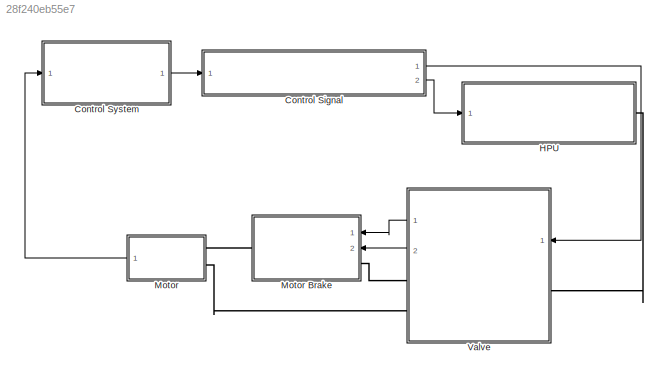
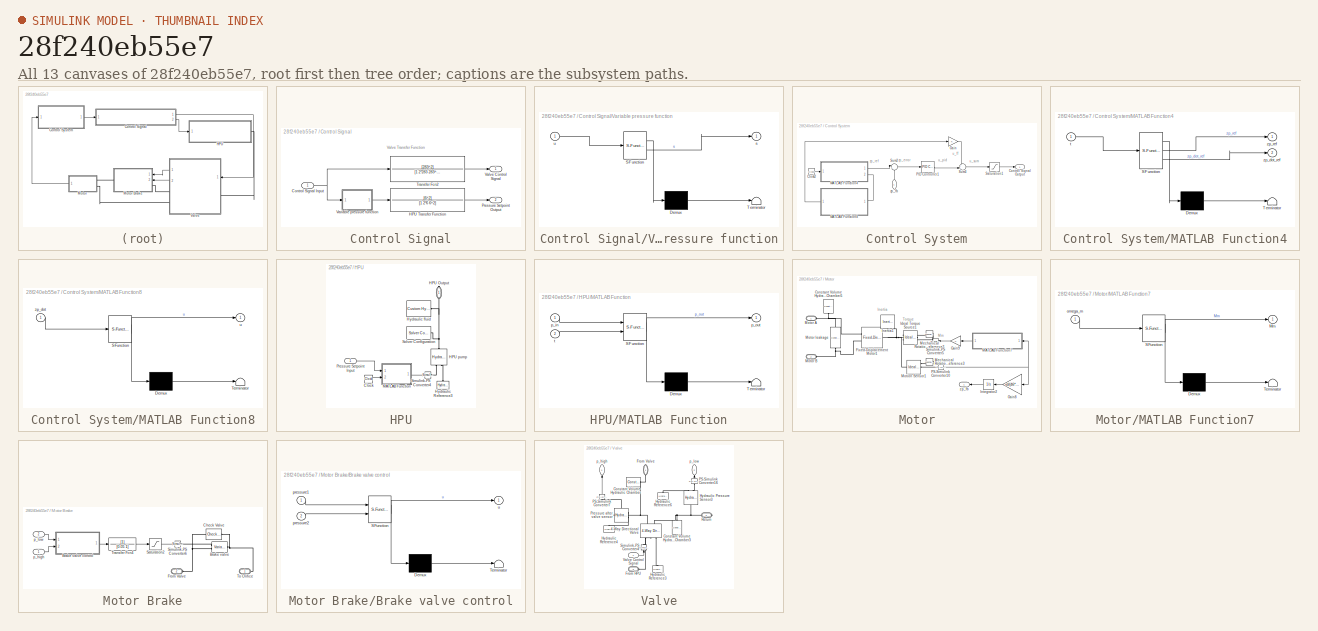
[diagram: thumbnail index - all 13 canvases of the model, root first then tree order]
MODEL slx_28f240eb55e7
KIND model
CONFIG AbsTol = auto
CONFIG EnableMultiTasking = off
CONFIG FixedStep = auto
CONFIG MaxStep = auto
CONFIG MinStep = auto
CONFIG RelTol = 1e-3
CONFIG SampleTimeConstraint = Unconstrained
CONFIG SolverName = VariableStepAuto
CONFIG StartTime = 0.0
CONFIG StopTime = 20
WORKSPACE source: MATLAB code (in-file)
WORKSPACE rho = 875
WORKSPACE P_r = 70e5  (= 7000000)
WORKSPACE Cd = 0.7
WORKSPACE Q_r = 200/6e4  (= 0.00333333333333)
WORKSPACE AdMax = Q_r/Cd/sqrt(2/rho*P_r/2)
WORKSPACE g = 9.81
WORKSPACE zw = 0.8
WORKSPACE tw = 10
WORKSPACE ig = 46
WORKSPACE m = 9000
WORKSPACE mueq = 0.15
WORKSPACE dd = 0.45
WORKSPACE nyv = 0.92
WORKSPACE rd = dd/2  (= 0.225)
WORKSPACE omega0 = 5
WORKSPACE omegap = 1500
WORKSPACE nsh = 3
WORKSPACE gearrationsh = nsh.*2
BLOCK [SubSystem] Control Signal
  Ports = [1, 2]
BLOCK [Inport] Control Signal/Control Signal Input
BLOCK [TransferFcn] Control Signal/HPU Transfer Function
  Denominator = [1 2*6 6^2]
  Numerator = [6^2]
BLOCK [Outport] Control Signal/Pressure Setpoint Output
  Port = 2
BLOCK [TransferFcn] Control Signal/Transfer Fcn2
  Denominator = [1 2*283 283^2]
  Numerator = [283^2]
BLOCK [Outport] Control Signal/Valve Control Signal
BLOCK [SubSystem] Control Signal/Variable pressure function
  ErrorFcn = Stateflow.Translate.translate
  PermitHierarchicalResolution = ExplicitOnly
  Ports = [1, 1]
  SFBlockType = MATLAB Function
  TreatAsAtomicUnit = on
BLOCK [Demux] Control Signal/Variable pressure function/ Demux 
  Outputs = 1
  Ports = [1, 1]
BLOCK [S-Function] Control Signal/Variable pressure function/ SFunction 
  EnableBusSupport = on
  FunctionName = sf_sfun
  PortCounts = [1 2]
  Ports = [1, 2]
  SFcnIsStateOwnerBlock = off
  SFunctionDeploymentMode = off
  Tag = Stateflow S-Function 7
BLOCK [Terminator] Control Signal/Variable pressure function/ Terminator 
BLOCK [Outport] Control Signal/Variable pressure function/s
BLOCK [Inport] Control Signal/Variable pressure function/u
BLOCK [SubSystem] Control System
  Ports = [1, 1]
BLOCK [Clock] Control System/Clock2
BLOCK [Outport] Control System/Control Signal Output
BLOCK [Gain] Control System/Gain
BLOCK [SubSystem] Control System/MATLAB Function4
  ErrorFcn = Stateflow.Translate.translate
  PermitHierarchicalResolution = ExplicitOnly
  Ports = [1, 2]
  SFBlockType = MATLAB Function
  TreatAsAtomicUnit = on
BLOCK [Demux] Control System/MATLAB Function4/ Demux 
  Outputs = 1
  Ports = [1, 1]
BLOCK [S-Function] Control System/MATLAB Function4/ SFunction 
  EnableBusSupport = on
  FunctionName = sf_sfun
  PortCounts = [1 3]
  Ports = [1, 3]
  SFcnIsStateOwnerBlock = off
  SFunctionDeploymentMode = off
  Tag = Stateflow S-Function 6
BLOCK [Terminator] Control System/MATLAB Function4/ Terminator 
BLOCK [Inport] Control System/MATLAB Function4/t
BLOCK [Outport] Control System/MATLAB Function4/zp_dot_ref
  Port = 2
BLOCK [Outport] Control System/MATLAB Function4/zp_ref
BLOCK [SubSystem] Control System/MATLAB Function8
  ErrorFcn = Stateflow.Translate.translate
  NameLocation = top
  PermitHierarchicalResolution = ExplicitOnly
  Ports = [1, 1]
  SFBlockType = MATLAB Function
  TreatAsAtomicUnit = on
BLOCK [Demux] Control System/MATLAB Function8/ Demux 
  Outputs = 1
  Ports = [1, 1]
BLOCK [S-Function] Control System/MATLAB Function8/ SFunction 
  EnableBusSupport = on
  FunctionName = sf_sfun
  PortCounts = [1 2]
  Ports = [1, 2]
  SFcnIsStateOwnerBlock = off
  SFunctionDeploymentMode = off
  Tag = Stateflow S-Function 11
BLOCK [Terminator] Control System/MATLAB Function8/ Terminator 
BLOCK [Outport] Control System/MATLAB Function8/u
BLOCK [Inport] Control System/MATLAB Function8/zp_dot
BLOCK [Reference] Control System/PID Controller1  REF=slpidlib/PID Controller
  Ports = [1, 1]
  SourceBlock = slpidlib/PID Controller
  SourceType = PID 1dof
BLOCK [Saturate] Control System/Saturation1
  LowerLimit = -1
  UpperLimit = 1
BLOCK [Sum] Control System/Sum2
  Inputs = |+-
  Ports = [2, 1]
BLOCK [Sum] Control System/Sum3
  Inputs = ++|
  Ports = [2, 1]
BLOCK [Inport] Control System/zp_fb
  NameLocation = right
BLOCK [SubSystem] HPU
  Ports = [1, 0, 0, 0, 0, 0, 1]
BLOCK [Clock] HPU/Clock
BLOCK [PMIOPort] HPU/HPU Output
  NameLocation = right
  Side = Right
BLOCK [Reference] HPU/HPU pump  REF=fl_lib/Hydraulic/Hydraulic Sources/Hydraulic Pressure
Source
  NameLocation = right
  Ports = [0, 0, 0, 0, 0, 1, 2]
  SourceBlock = fl_lib/Hydraulic/Hydraulic Sources/Hydraulic Pressure\nSource
  SourceType = Hydraulic Pressure\nSource
BLOCK [Reference] HPU/Hydraulic Reference3  REF=fl_lib/Hydraulic/Hydraulic Elements/Hydraulic Reference
  NameLocation = right
  Ports = [0, 0, 0, 0, 0, 1]
  SourceBlock = fl_lib/Hydraulic/Hydraulic Elements/Hydraulic Reference
  SourceType = Hydraulic Reference
BLOCK [Reference] HPU/Hydraulic fluid  REF=fl_lib/Hydraulic/Hydraulic Utilities/Custom Hydraulic
Fluid
  Ports = [0, 0, 0, 0, 0, 0, 1]
  SourceBlock = fl_lib/Hydraulic/Hydraulic Utilities/Custom Hydraulic\nFluid
  SourceType = Custom Hydraulic\nFluid
BLOCK [SubSystem] HPU/MATLAB Function
  ErrorFcn = Stateflow.Translate.translate
  PermitHierarchicalResolution = ExplicitOnly
  Ports = [2, 1]
  SFBlockType = MATLAB Function
  TreatAsAtomicUnit = on
BLOCK [Demux] HPU/MATLAB Function/ Demux 
  Outputs = 1
  Ports = [1, 1]
BLOCK [S-Function] HPU/MATLAB Function/ SFunction 
  EnableBusSupport = on
  FunctionName = sf_sfun
  PortCounts = [2 2]
  Ports = [2, 2]
  SFcnIsStateOwnerBlock = off
  SFunctionDeploymentMode = off
  Tag = Stateflow S-Function 2
BLOCK [Terminator] HPU/MATLAB Function/ Terminator 
BLOCK [Inport] HPU/MATLAB Function/p_in
BLOCK [Outport] HPU/MATLAB Function/p_out
BLOCK [Inport] HPU/MATLAB Function/t
  Port = 2
BLOCK [Inport] HPU/Pressure Setpoint Input
BLOCK [Reference] HPU/Simulink-PS Converter4  REF=nesl_utility/Simulink-PS
Converter
  Ports = [1, 0, 0, 0, 0, 0, 1]
  SourceBlock = nesl_utility/Simulink-PS\nConverter
  SourceType = Simulink-PS\nConverter
BLOCK [Reference] HPU/Solver Configuration  REF=nesl_utility/Solver
Configuration
  Ports = [0, 0, 0, 0, 0, 0, 1]
  SourceBlock = nesl_utility/Solver\nConfiguration
  SourceType = Solver\nConfiguration
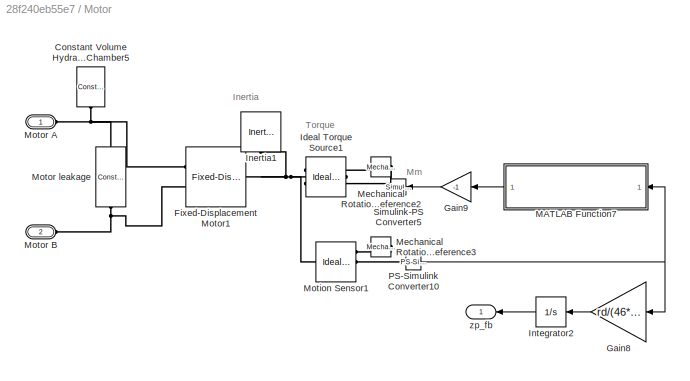
BLOCK [SubSystem] Motor
  NameLocation = top
  Ports = [0, 1, 0, 0, 0, 2]
BLOCK [SubSystem] Motor Brake
  NameLocation = top
  Ports = [2, 0, 0, 0, 0, 1, 1]
BLOCK [Reference] Motor Brake/Brake valve  REF=sh_lib/Orifices/Variable Orifice
  Ports = [0, 0, 0, 0, 0, 2, 1]
  SourceBlock = sh_lib/Orifices/Variable Orifice
  SourceType = Variable Orifice
BLOCK [SubSystem] Motor Brake/Brake valve control
  ErrorFcn = Stateflow.Translate.translate
  PermitHierarchicalResolution = ExplicitOnly
  Ports = [2, 1]
  SFBlockType = MATLAB Function
  TreatAsAtomicUnit = on
BLOCK [Demux] Motor Brake/Brake valve control/ Demux 
  Outputs = 1
  Ports = [1, 1]
BLOCK [S-Function] Motor Brake/Brake valve control/ SFunction 
  EnableBusSupport = on
  FunctionName = sf_sfun
  PortCounts = [2 2]
  Ports = [2, 2]
  SFcnIsStateOwnerBlock = off
  SFunctionDeploymentMode = off
  Tag = Stateflow S-Function 9
BLOCK [Terminator] Motor Brake/Brake valve control/ Terminator 
BLOCK [Inport] Motor Brake/Brake valve control/pressure1
BLOCK [Inport] Motor Brake/Brake valve control/pressure2
  Port = 2
BLOCK [Outport] Motor Brake/Brake valve control/u
BLOCK [Reference] Motor Brake/Check Valve  REF=sh_lib/Valves/Directional Valves/Check Valve
  Ports = [0, 0, 0, 0, 0, 1, 1]
  SourceBlock = sh_lib/Valves/Directional Valves/Check Valve
  SourceType = Check Valve
BLOCK [PMIOPort] Motor Brake/From Valve
  Port = 2
  Side = Left
BLOCK [Saturate] Motor Brake/Saturation2
  LowerLimit = 0
  UpperLimit = 1
BLOCK [Reference] Motor Brake/Simulink-PS Converter6  REF=nesl_utility/Simulink-PS
Converter
  Ports = [1, 0, 0, 0, 0, 0, 1]
  SourceBlock = nesl_utility/Simulink-PS\nConverter
  SourceType = Simulink-PS\nConverter
BLOCK [PMIOPort] Motor Brake/To Orifice
  Side = Right
BLOCK [TransferFcn] Motor Brake/Transfer Fcn4
  Denominator = [0.05 1]
BLOCK [Inport] Motor Brake/p_high
BLOCK [Inport] Motor Brake/p_low
  Port = 2
BLOCK [Reference] Motor/Constant Volume Hydraulic Chamber5  REF=fl_lib/Hydraulic/Hydraulic Elements/Constant Volume
Hydraulic Chamber
  NameLocation = left
  Ports = [0, 0, 0, 0, 0, 1]
  SourceBlock = fl_lib/Hydraulic/Hydraulic Elements/Constant Volume\nHydraulic Chamber
  SourceType = Constant Volume\nHydraulic Chamber
BLOCK [Reference] Motor/Fixed-Displacement Motor1  REF=sh_lib/Pumps and Motors/Fixed-Displacement
Motor
  Ports = [0, 0, 0, 0, 0, 2, 1]
  SourceBlock = sh_lib/Pumps and Motors/Fixed-Displacement\nMotor
  SourceType = Fixed-Displacement\nMotor
BLOCK [Gain] Motor/Gain8
  Gain = rd/(46*6)
  NameLocation = top
BLOCK [Gain] Motor/Gain9
  Gain = -1
  NameLocation = top
BLOCK [Reference] Motor/Ideal Torque Source1  REF=fl_lib/Mechanical/Mechanical Sources/Ideal Torque Source
  NameLocation = top
  Ports = [0, 0, 0, 0, 0, 1, 2]
  SourceBlock = fl_lib/Mechanical/Mechanical Sources/Ideal Torque Source
  SourceType = Ideal Torque Source
BLOCK [Reference] Motor/Inertia1  REF=fl_lib/Mechanical/Rotational Elements/Inertia
  NameLocation = left
  Ports = [0, 0, 0, 0, 0, 1]
  SourceBlock = fl_lib/Mechanical/Rotational Elements/Inertia
  SourceType = Inertia
  Tag = Factory Generic
BLOCK [Integrator] Motor/Integrator2
  NameLocation = top
  Ports = [1, 1]
BLOCK [SubSystem] Motor/MATLAB Function7
  ErrorFcn = Stateflow.Translate.translate
  NameLocation = top
  PermitHierarchicalResolution = ExplicitOnly
  Ports = [1, 1]
  SFBlockType = MATLAB Function
  TreatAsAtomicUnit = on
BLOCK [Demux] Motor/MATLAB Function7/ Demux 
  Outputs = 1
  Ports = [1, 1]
BLOCK [S-Function] Motor/MATLAB Function7/ SFunction 
  EnableBusSupport = on
  FunctionName = sf_sfun
  PortCounts = [1 2]
  Ports = [1, 2]
  SFcnIsStateOwnerBlock = off
  SFunctionDeploymentMode = off
  Tag = Stateflow S-Function 10
BLOCK [Terminator] Motor/MATLAB Function7/ Terminator 
BLOCK [Outport] Motor/MATLAB Function7/Mm
BLOCK [Inport] Motor/MATLAB Function7/omega_m
BLOCK [Reference] Motor/Mechanical Rotational Reference2  REF=fl_lib/Mechanical/Rotational Elements/Mechanical
Rotational Reference
  NameLocation = top
  Ports = [0, 0, 0, 0, 0, 1]
  SourceBlock = fl_lib/Mechanical/Rotational Elements/Mechanical\nRotational Reference
  SourceType = Mechanical\nRotational Reference
BLOCK [Reference] Motor/Mechanical Rotational Reference3  REF=fl_lib/Mechanical/Rotational Elements/Mechanical
Rotational Reference
  NameLocation = top
  Ports = [0, 0, 0, 0, 0, 1]
  SourceBlock = fl_lib/Mechanical/Rotational Elements/Mechanical\nRotational Reference
  SourceType = Mechanical\nRotational Reference
BLOCK [Reference] Motor/Motion Sensor1  REF=fl_lib/Mechanical/Mechanical Sensors/Ideal Rotational
Motion Sensor
  Ports = [0, 0, 0, 0, 0, 1, 3]
  SourceBlock = fl_lib/Mechanical/Mechanical Sensors/Ideal Rotational\nMotion Sensor
  SourceType = Ideal Rotational\nMotion Sensor
  Tag = Factory Generic
BLOCK [PMIOPort] Motor/Motor A
  Side = Left
BLOCK [PMIOPort] Motor/Motor B
  Port = 2
  Side = Left
BLOCK [Reference] Motor/Motor leakage  REF=fl_lib/Hydraulic/Hydraulic Elements/Constant Area
Hydraulic Orifice
  NameLocation = left
  Ports = [0, 0, 0, 0, 0, 1, 1]
  SourceBlock = fl_lib/Hydraulic/Hydraulic Elements/Constant Area\nHydraulic Orifice
  SourceType = Constant Area\nHydraulic Orifice
BLOCK [Reference] Motor/PS-Simulink Converter10  REF=nesl_utility/PS-Simulink
Converter
  Ports = [0, 1, 0, 0, 0, 1]
  SourceBlock = nesl_utility/PS-Simulink\nConverter
  SourceType = PS-Simulink\nConverter
BLOCK [Reference] Motor/Simulink-PS Converter5  REF=nesl_utility/Simulink-PS
Converter
  NameLocation = top
  Ports = [1, 0, 0, 0, 0, 0, 1]
  SourceBlock = nesl_utility/Simulink-PS\nConverter
  SourceType = Simulink-PS\nConverter
BLOCK [Outport] Motor/zp_fb
  NameLocation = top
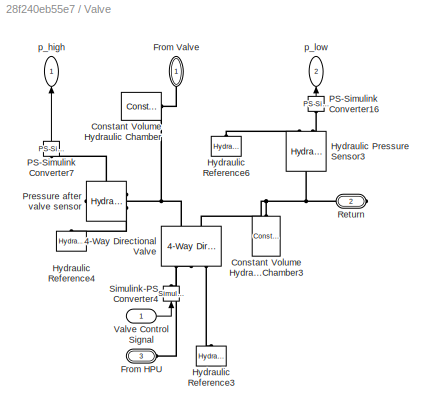
BLOCK [SubSystem] Valve
  NameLocation = top
  Ports = [1, 2, 0, 0, 0, 1, 2]
BLOCK [Reference] Valve/4-Way Directional Valve  REF=sh_lib/Valves/Directional Valves/4-Way Directional
Valve
  NameLocation = right
  Ports = [0, 0, 0, 0, 0, 2, 3]
  SourceBlock = sh_lib/Valves/Directional Valves/4-Way Directional\nValve
  SourceType = 4-Way Directional\nValve
BLOCK [Reference] Valve/Constant Volume Hydraulic Chamber  REF=fl_lib/Hydraulic/Hydraulic Elements/Constant Volume
Hydraulic Chamber
  Ports = [0, 0, 0, 0, 0, 1]
  SourceBlock = fl_lib/Hydraulic/Hydraulic Elements/Constant Volume\nHydraulic Chamber
  SourceType = Constant Volume\nHydraulic Chamber
BLOCK [Reference] Valve/Constant Volume Hydraulic Chamber3  REF=fl_lib/Hydraulic/Hydraulic Elements/Constant Volume
Hydraulic Chamber
  NameLocation = right
  Ports = [0, 0, 0, 0, 0, 1]
  SourceBlock = fl_lib/Hydraulic/Hydraulic Elements/Constant Volume\nHydraulic Chamber
  SourceType = Constant Volume\nHydraulic Chamber
BLOCK [PMIOPort] Valve/From HPU
  Port = 3
  Side = Left
BLOCK [PMIOPort] Valve/From Valve
  NameLocation = right
  Side = Right
BLOCK [Reference] Valve/Hydraulic Pressure Sensor3  REF=fl_lib/Hydraulic/Hydraulic Sensors/Hydraulic Pressure
Sensor
  NameLocation = right
  Ports = [0, 0, 0, 0, 0, 1, 2]
  SourceBlock = fl_lib/Hydraulic/Hydraulic Sensors/Hydraulic Pressure\nSensor
  SourceType = Hydraulic Pressure\nSensor
BLOCK [Reference] Valve/Hydraulic Reference3  REF=fl_lib/Hydraulic/Hydraulic Elements/Hydraulic Reference
  NameLocation = right
  Ports = [0, 0, 0, 0, 0, 1]
  SourceBlock = fl_lib/Hydraulic/Hydraulic Elements/Hydraulic Reference
  SourceType = Hydraulic Reference
BLOCK [Reference] Valve/Hydraulic Reference4  REF=fl_lib/Hydraulic/Hydraulic Elements/Hydraulic Reference
  NameLocation = right
  Ports = [0, 0, 0, 0, 0, 1]
  SourceBlock = fl_lib/Hydraulic/Hydraulic Elements/Hydraulic Reference
  SourceType = Hydraulic Reference
BLOCK [Reference] Valve/Hydraulic Reference6  REF=fl_lib/Hydraulic/Hydraulic Elements/Hydraulic Reference
  NameLocation = right
  Ports = [0, 0, 0, 0, 0, 1]
  SourceBlock = fl_lib/Hydraulic/Hydraulic Elements/Hydraulic Reference
  SourceType = Hydraulic Reference
BLOCK [Reference] Valve/PS-Simulink Converter16  REF=nesl_utility/PS-Simulink
Converter
  NameLocation = right
  Ports = [0, 1, 0, 0, 0, 1]
  SourceBlock = nesl_utility/PS-Simulink\nConverter
  SourceType = PS-Simulink\nConverter
BLOCK [Reference] Valve/PS-Simulink Converter7  REF=nesl_utility/PS-Simulink
Converter
  NameLocation = right
  Ports = [0, 1, 0, 0, 0, 1]
  SourceBlock = nesl_utility/PS-Simulink\nConverter
  SourceType = PS-Simulink\nConverter
BLOCK [Reference] Valve/Pressure after valve sensor  REF=fl_lib/Hydraulic/Hydraulic Sensors/Hydraulic Pressure
Sensor
  NameLocation = top
  Ports = [0, 0, 0, 0, 0, 1, 2]
  SourceBlock = fl_lib/Hydraulic/Hydraulic Sensors/Hydraulic Pressure\nSensor
  SourceType = Hydraulic Pressure\nSensor
BLOCK [PMIOPort] Valve/Return
  Port = 2
  Side = Right
BLOCK [Reference] Valve/Simulink-PS Converter4  REF=nesl_utility/Simulink-PS
Converter
  NameLocation = right
  Ports = [1, 0, 0, 0, 0, 0, 1]
  SourceBlock = nesl_utility/Simulink-PS\nConverter
  SourceType = Simulink-PS\nConverter
BLOCK [Inport] Valve/Valve Control Signal
BLOCK [Outport] Valve/p_high
  NameLocation = right
BLOCK [Outport] Valve/p_low
  NameLocation = right
  Port = 2
ANNOTATION Control Signal: Valve Transfer Function
ANNOTATION Control System: zp_error
ANNOTATION Control System: u_ff
ANNOTATION Control System: u_pid
ANNOTATION Control System: u_sum
ANNOTATION Control System: zp_ref
ANNOTATION Motor: Inertia
ANNOTATION Motor: Mm
ANNOTATION Motor: Torque
NET Control Signal/Control Signal Input:1 -> Control Signal/Transfer Fcn2:1, Control Signal/Variable pressure function:1
LINE Control Signal/HPU Transfer Function:1 -> Control Signal/Pressure Setpoint Output:1
LINE Control Signal/Transfer Fcn2:1 -> Control Signal/Valve Control Signal:1
LINE Control Signal/Variable pressure function:1 -> Control Signal/HPU Transfer Function:1
LINE Control Signal:1 -> Valve:1
LINE Control Signal:2 -> HPU:1
LINE Control System/Clock2:1 -> Control System/MATLAB Function4:1
LINE Control System/Gain:1 -> Control System/Sum3:1
LINE Control System/MATLAB Function4:1 -> Control System/Sum2:1
LINE Control System/MATLAB Function4:2 -> Control System/MATLAB Function8:1
LINE Control System/MATLAB Function8:1 -> Control System/Gain:1
LINE Control System/PID Controller1:1 -> Control System/Sum3:2
LINE Control System/Saturation1:1 -> Control System/Control Signal Output:1
LINE Control System/Sum2:1 -> Control System/PID Controller1:1
LINE Control System/Sum3:1 -> Control System/Saturation1:1
LINE Control System/zp_fb:1 -> Control System/Sum2:2
LINE Control System:1 -> Control Signal:1
LINE HPU/Clock:1 -> HPU/MATLAB Function:2
LINE HPU/MATLAB Function:1 -> HPU/Simulink-PS Converter4:1
LINE HPU/Pressure Setpoint Input:1 -> HPU/MATLAB Function:1
LINE Motor Brake/Brake valve control:1 -> Motor Brake/Transfer Fcn4:1
LINE Motor Brake/Saturation2:1 -> Motor Brake/Simulink-PS Converter6:1
LINE Motor Brake/Transfer Fcn4:1 -> Motor Brake/Saturation2:1
LINE Motor Brake/p_high:1 -> Motor Brake/Brake valve control:2
LINE Motor Brake/p_low:1 -> Motor Brake/Brake valve control:1
LINE Motor/Gain8:1 -> Motor/Integrator2:1
LINE Motor/Gain9:1 -> Motor/Simulink-PS Converter5:1
LINE Motor/Integrator2:1 -> Motor/zp_fb:1
LINE Motor/MATLAB Function7:1 -> Motor/Gain9:1
NET Motor/PS-Simulink Converter10:1 -> Motor/Gain8:1, Motor/MATLAB Function7:1
LINE Motor:1 -> Control System:1
LINE Valve/PS-Simulink Converter16:1 -> Valve/p_low:1
LINE Valve/PS-Simulink Converter7:1 -> Valve/p_high:1
LINE Valve/Valve Control Signal:1 -> Valve/Simulink-PS Converter4:1
LINE Valve:1 -> Motor Brake:1
LINE Valve:2 -> Motor Brake:2
PNET net1: HPU/HPU Output:RConn1 -- HPU/HPU pump:LConn1 -- HPU/Hydraulic fluid:RConn1 -- HPU/Solver Configuration:RConn1
PLINE HPU/HPU pump:RConn1 -- HPU/Simulink-PS Converter4:RConn1
PLINE HPU/HPU pump:RConn2 -- HPU/Hydraulic Reference3:LConn1
PLINE HPU:RConn1 -- Valve:LConn1
PLINE Motor Brake/Brake valve:LConn1 -- Motor Brake/Simulink-PS Converter6:RConn1
PNET net2: Motor Brake/Brake valve:LConn2 -- Motor Brake/Check Valve:LConn1 -- Motor Brake/From Valve:RConn1
PNET net3: Motor Brake/Brake valve:RConn1 -- Motor Brake/Check Valve:RConn1 -- Motor Brake/To Orifice:RConn1
PLINE Motor Brake:LConn1 -- Valve:RConn1
PLINE Motor Brake:RConn1 -- Motor:LConn1
PNET net4: Motor/Constant Volume Hydraulic Chamber5:LConn1 -- Motor/Fixed-Displacement Motor1:LConn1 -- Motor/Motor A:RConn1 -- Motor/Motor leakage:LConn1
PNET net5: Motor/Fixed-Displacement Motor1:LConn2 -- Motor/Motor B:RConn1 -- Motor/Motor leakage:RConn1
PNET net6: Motor/Fixed-Displacement Motor1:RConn1 -- Motor/Ideal Torque Source1:LConn1 -- Motor/Inertia1:LConn1 -- Motor/Motion Sensor1:LConn1
PLINE Motor/Ideal Torque Source1:RConn1 -- Motor/Simulink-PS Converter5:RConn1
PLINE Motor/Ideal Torque Source1:RConn2 -- Motor/Mechanical Rotational Reference2:LConn1
PLINE Motor/Mechanical Rotational Reference3:LConn1 -- Motor/Motion Sensor1:RConn1
PLINE Motor/Motion Sensor1:RConn2 -- Motor/PS-Simulink Converter10:LConn1
PLINE Motor:LConn2 -- Valve:RConn2
PNET net7: Valve/4-Way Directional Valve:LConn1 -- Valve/Constant Volume Hydraulic Chamber:LConn1 -- Valve/From Valve:RConn1 -- Valve/Pressure after valve sensor:LConn1
PNET net8: Valve/4-Way Directional Valve:LConn2 -- Valve/Constant Volume Hydraulic Chamber3:LConn1 -- Valve/Hydraulic Pressure Sensor3:LConn1 -- Valve/Return:RConn1
PLINE Valve/4-Way Directional Valve:RConn1 -- Valve/Simulink-PS Converter4:RConn1
PLINE Valve/4-Way Directional Valve:RConn2 -- Valve/From HPU:RConn1
PLINE Valve/4-Way Directional Valve:RConn3 -- Valve/Hydraulic Reference3:LConn1
PLINE Valve/Hydraulic Pressure Sensor3:RConn1 -- Valve/Hydraulic Reference6:LConn1
PLINE Valve/Hydraulic Pressure Sensor3:RConn2 -- Valve/PS-Simulink Converter16:LConn1
PLINE Valve/Hydraulic Reference4:LConn1 -- Valve/Pressure after valve sensor:RConn1
PLINE Valve/PS-Simulink Converter7:LConn1 -- Valve/Pressure after valve sensor:RConn2
note: NET lines group one-source signal fan-out (src -> all destinations, sorted); 1:1 wires keep LINE; PNET lines group multi-terminal physical nets as a canonical sorted terminal list (undirected conserving connections); 2-terminal nets keep the pairwise PLINE form
CHART HPU/MATLAB Function states=1 transitions=1
  STATE_LABEL 'eML_blk_kernel()'
  STATE_LABEL 'SCRIPT:\nfunction p_out = fcn(p_in, t)\nif(t<2)\n    p_out = 260e5;\nelse\n    p_out = p_in;\nend'
CHART Control System/MATLAB Function4 states=1 transitions=1
  STATE_LABEL 'eML_blk_kernel()'
  STATE_LABEL 'SCRIPT:\nfunction [zp_ref, zp_dot_ref]  = z_height(t)\n\nz_w = 0.8; % m\nT_w = 10; % s\n\nzp_ref = z_w * sin((2*pi*t)/T_w);\nzp_dot_ref = (2*z_w*pi*cos((2*pi*t)/T_w))/T_w;'
CHART Control Signal/Variable pressure function states=1 transitions=1
  STATE_LABEL 'eML_blk_kernel()'
  STATE_LABEL 'SCRIPT:\nfunction s = vp(u)\n\nif(u > 0)\n    s = 260e5;\nelse\n    s = 100e5;\nend'
CHART Motor Brake/Brake valve control states=1 transitions=1
  STATE_LABEL 'eML_blk_kernel()'
  STATE_LABEL 'SCRIPT:\nfunction u = fcn(pressure1,pressure2)\n\np_cr = 20; % bar\ndp_fo = 65; % bar, delta p_fully_open\n\nu = ((pressure1*1e-5) - (pressure2*1e-5) - p_cr)/dp_fo;'
CHART Motor/MATLAB Function7 states=1 transitions=1
  STATE_LABEL 'eML_blk_kernel()'
  STATE_LABEL 'SCRIPT:\nfunction Mm = motor_moment(omega_m)\n\nn_sh = 3; % shieves\ni_g = 46; % gearbox ratio\nm_pl = 9000; % kg\nd_D = 0.45; % m\nmu_eq = 0.15; % -\nomega_0 = 5; % rad/s\ng = 9.81; % m/(s^2)\n\nMm = (m_pl*g*d_D)/(2*n_sh*2*i_g) * (1 + mu_eq * tanh(omega_m/omega_0));'
CHART Control System/MATLAB Function8 states=1 transitions=1
  STATE_LABEL 'eML_blk_kernel()'
  STATE_LABEL 'SCRIPT:\nfunction u  = ff(zp_dot)\n\ndd = 0.45;\nrho = 875; % kg/m^3\n\nDm = 28.1*10^-6; % m^3/rev\nn = (zp_dot/(dd/2)) * 46  * 6 / (2*pi); % rev/s\n\nQ = (Dm*n);\n\nCd = 0.7;\nAdmax = (5.324e-5)*2; % m^2\n\nu = (Q/(Cd*Admax * sqrt(2/rho*35e5))); % dp = p_mo = pressure metering orifice'
CHART  states=0 transitions=0
CHART  states=0 transitions=0
CHART  states=0 transitions=0
CHART  states=0 transitions=0
CHART  states=0 transitions=0
CHART  states=0 transitions=0
